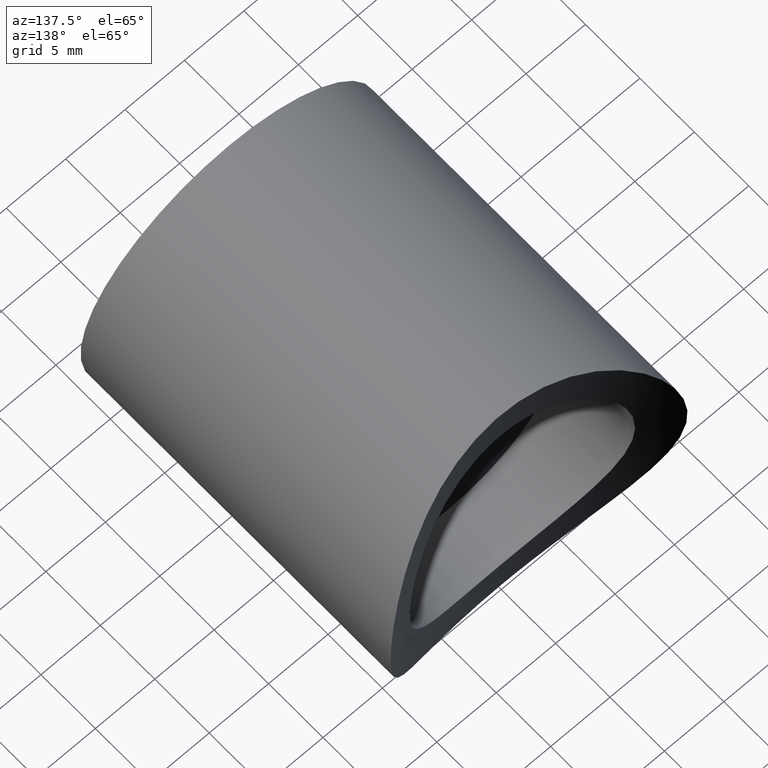
[diagram: clean part render]
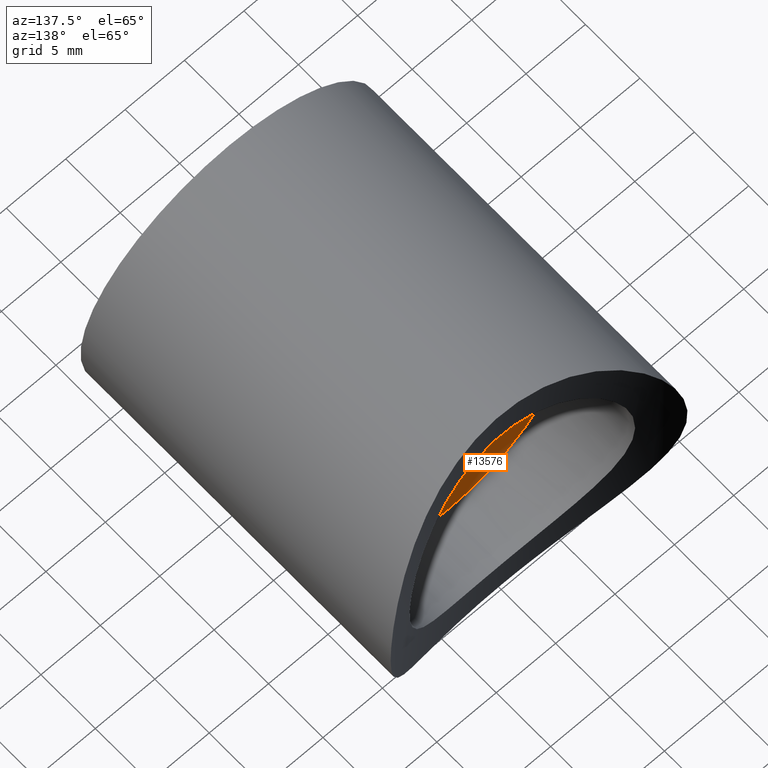
[diagram: same view with one face highlighted and labeled with its STEP entity id]
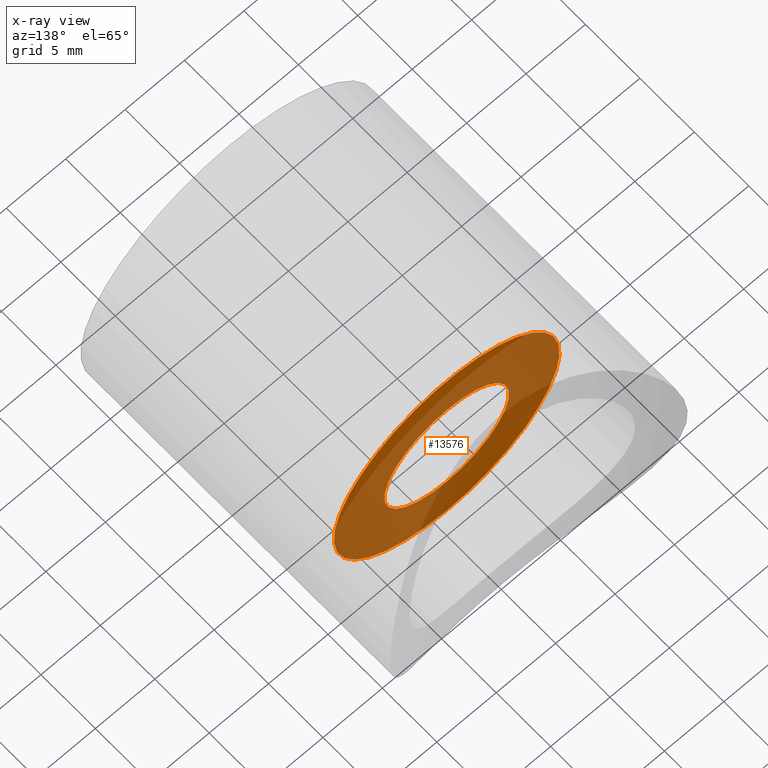
[diagram: x-ray of the same camera — body ghosted, the highlighted face saturated]
A machine part, auxiliary view. The second image highlights one B-rep face of the part: STEP entity #13576.
The next image is the same camera in x-ray: the body ghosted, the highlighted face saturated — about 77% of this face is hidden behind the body in this view.
In plain terms, the highlighted planar face has unit normal (0, -1, 0).
Its self-contained STEP definition (entity closure, byte-faithful):
#130 = VERTEX_POINT ( 'NONE', #10919 ) ;
#272 = DIRECTION ( 'NONE',  ( 0.000000000000000000, 0.000000000000000000, -1.000000000000000000 ) ) ;
#1231 = FACE_OUTER_BOUND ( 'NONE', #3300, .T. ) ;
#1535 = DIRECTION ( 'NONE',  ( 0.000000000000000000, -1.000000000000000000, 0.000000000000000000 ) ) ;
#2513 = PLANE ( 'NONE',  #8437 ) ;
#3300 = EDGE_LOOP ( 'NONE', ( #5505 ) ) ;
#3471 = EDGE_CURVE ( 'NONE', #130, #130, #14219, .T. ) ;
#3521 = CARTESIAN_POINT ( 'NONE',  ( 0.000000000000000000, 20.00000000000000000, 0.000000000000000000 ) ) ;
#4164 = EDGE_LOOP ( 'NONE', ( #4827 ) ) ;
#4827 = ORIENTED_EDGE ( 'NONE', *, *, #9160, .T. ) ;
#4873 = CARTESIAN_POINT ( 'NONE',  ( 0.000000000000000000, 20.00000000000000000, 0.000000000000000000 ) ) ;
#5505 = ORIENTED_EDGE ( 'NONE', *, *, #3471, .F. ) ;
#7357 = DIRECTION ( 'NONE',  ( 0.000000000000000000, -0.000000000000000000, -1.000000000000000000 ) ) ;
#8198 = AXIS2_PLACEMENT_3D ( 'NONE', #4873, #9624, #272 ) ;
#8437 = AXIS2_PLACEMENT_3D ( 'NONE', #14574, #1535, #7357 ) ;
#9160 = EDGE_CURVE ( 'NONE', #10746, #10746, #10052, .T. ) ;
#9624 = DIRECTION ( 'NONE',  ( 0.000000000000000000, -1.000000000000000000, 0.000000000000000000 ) ) ;
#9923 = CARTESIAN_POINT ( 'NONE',  ( 0.000000000000000000, 20.00000000000000000, -5.250000000000004441 ) ) ;
#10052 = CIRCLE ( 'NONE', #14886, 5.250000000000004441 ) ;
#10746 = VERTEX_POINT ( 'NONE', #9923 ) ;
#10919 = CARTESIAN_POINT ( 'NONE',  ( 0.000000000000000000, 20.00000000000000000, -9.500000000000000000 ) ) ;
#11820 = DIRECTION ( 'NONE',  ( 0.000000000000000000, -1.000000000000000000, 0.000000000000000000 ) ) ;
#12573 = FACE_BOUND ( 'NONE', #4164, .T. ) ;
#13025 = DIRECTION ( 'NONE',  ( 0.000000000000000000, 0.000000000000000000, -1.000000000000000000 ) ) ;
#13576 = ADVANCED_FACE ( 'NONE', ( #12573, #1231 ), #2513, .F. ) ;
#14219 = CIRCLE ( 'NONE', #8198, 9.500000000000000000 ) ;
#14574 = CARTESIAN_POINT ( 'NONE',  ( 0.000000000000000000, 20.00000000000000000, 0.000000000000000000 ) ) ;
#14886 = AXIS2_PLACEMENT_3D ( 'NONE', #3521, #11820, #13025 ) ;